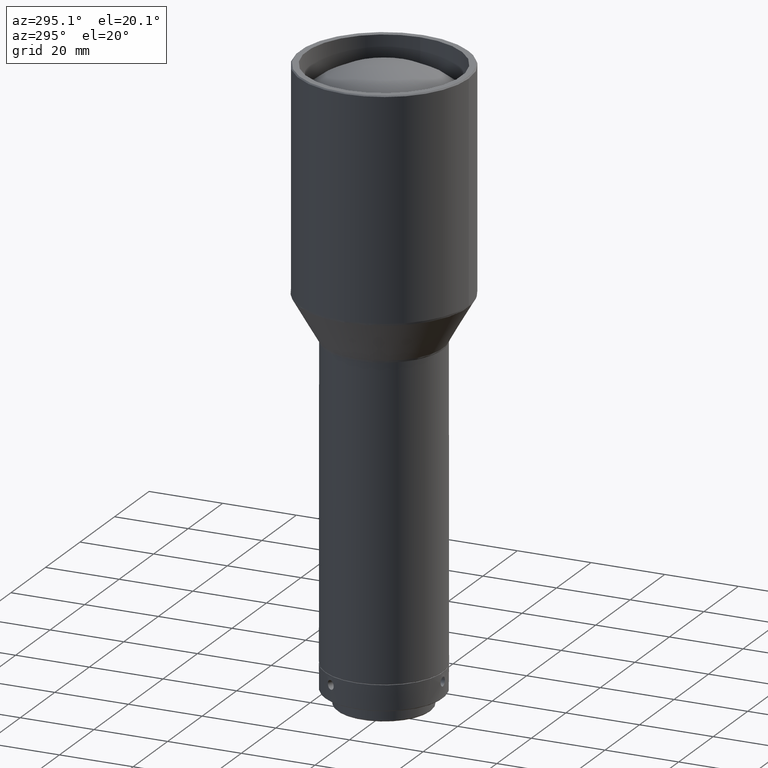
[diagram: clean part render]
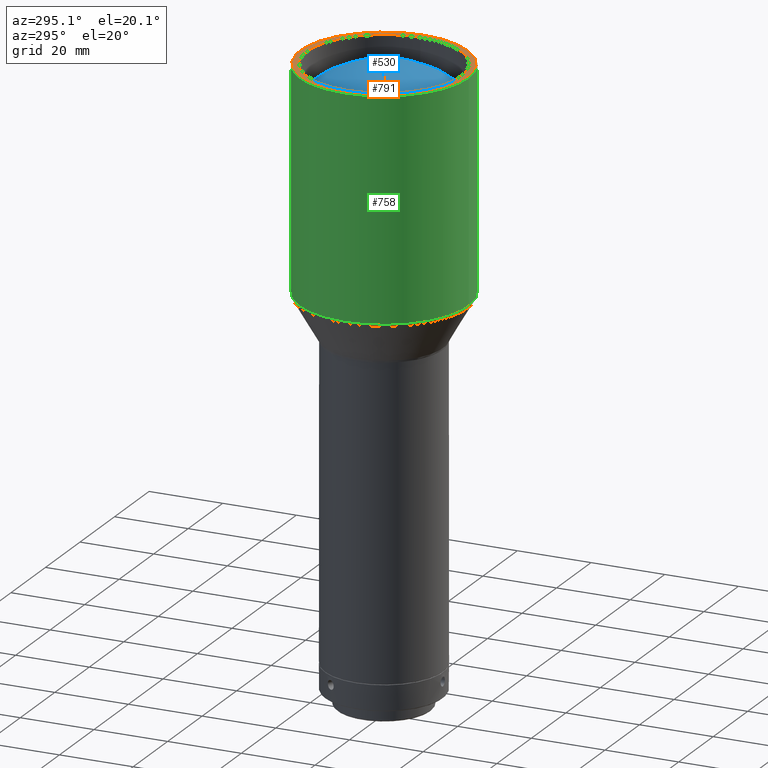
[diagram: same view with three faces highlighted in distinct colors, each labeled with its STEP entity id]
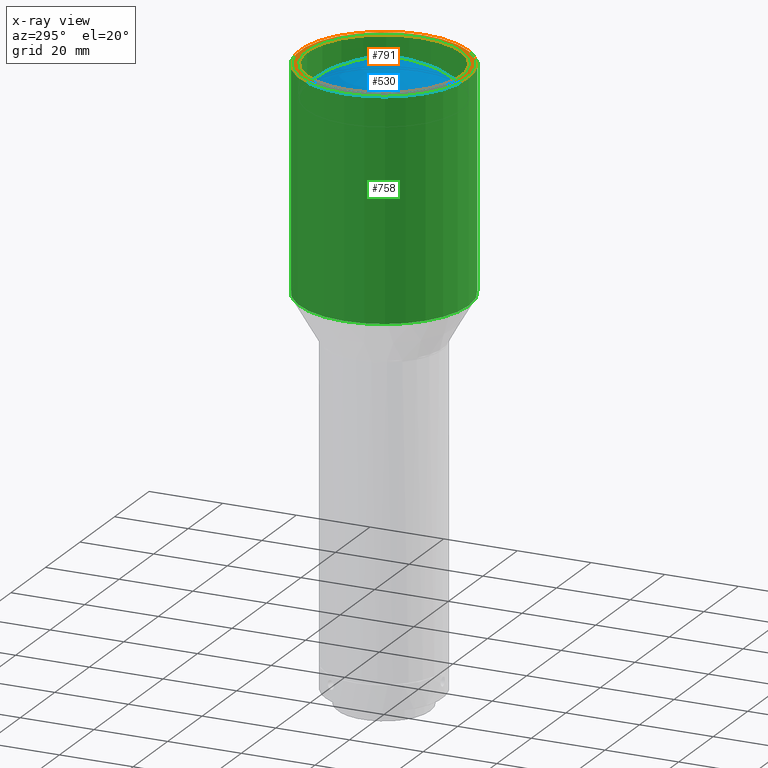
[diagram: x-ray of the same camera — body ghosted, the three highlighted faces saturated]
A machine part, auxiliary view with three faces highlighted in distinct colors.
The next image is the same camera in x-ray (body ghosted, the three faces saturated) — at least one of them is partly hidden behind the body in this view.
Their STEP definitions:

[orange] entity #791 — the highlighted planar face has unit normal (-0, -0, -1).
#7 = CIRCLE ( 'NONE', #616, 21.00000000000000000 ) ;
#30 = EDGE_LOOP ( 'NONE', ( #864 ) ) ;
#54 = DIRECTION ( 'NONE',  ( 0.000000000000000000, 0.000000000000000000, 1.000000000000000000 ) ) ;
#56 = FACE_OUTER_BOUND ( 'NONE', #30, .T. ) ;
#151 = VERTEX_POINT ( 'NONE', #484 ) ;
#191 = DIRECTION ( 'NONE',  ( -1.000000000000000000, 0.000000000000000000, 0.000000000000000000 ) ) ;
#320 = AXIS2_PLACEMENT_3D ( 'NONE', #720, #783, #378 ) ;
#374 = CIRCLE ( 'NONE', #735, 22.69999999999998153 ) ;
#378 = DIRECTION ( 'NONE',  ( 0.000000000000000000, 1.000000000000000000, -1.387225799431352990E-18 ) ) ;
#394 = PLANE ( 'NONE',  #320 ) ;
#444 = CARTESIAN_POINT ( 'NONE',  ( 1.144917494144692682E-13, -1.599226984640118170E-14, -950.0000000000000000 ) ) ;
#471 = DIRECTION ( 'NONE',  ( 1.000000000000000000, 0.000000000000000000, 0.000000000000000000 ) ) ;
#484 = CARTESIAN_POINT ( 'NONE',  ( -22.69999999999986784, -1.599226984640118170E-14, -950.0000000000000000 ) ) ;
#488 = EDGE_CURVE ( 'NONE', #1018, #1018, #7, .T. ) ;
#609 = CARTESIAN_POINT ( 'NONE',  ( 21.00000000000000000, 0.000000000000000000, -950.0000000000000000 ) ) ;
#616 = AXIS2_PLACEMENT_3D ( 'NONE', #983, #54, #471 ) ;
#704 = FACE_BOUND ( 'NONE', #844, .T. ) ;
#720 = CARTESIAN_POINT ( 'NONE',  ( 1.131076532574818235E-13, 21.74999999999997158, -950.0000000000000000 ) ) ;
#735 = AXIS2_PLACEMENT_3D ( 'NONE', #444, #770, #191 ) ;
#770 = DIRECTION ( 'NONE',  ( 0.000000000000000000, 0.000000000000000000, -1.000000000000000000 ) ) ;
#783 = DIRECTION ( 'NONE',  ( -4.930380657631324879E-32, -1.387225799431352990E-18, -1.000000000000000000 ) ) ;
#791 = ADVANCED_FACE ( 'NONE', ( #704, #56 ), #394, .F. ) ;
#844 = EDGE_LOOP ( 'NONE', ( #882 ) ) ;
#864 = ORIENTED_EDGE ( 'NONE', *, *, #905, .F. ) ;
#882 = ORIENTED_EDGE ( 'NONE', *, *, #488, .F. ) ;
#905 = EDGE_CURVE ( 'NONE', #151, #151, #374, .T. ) ;
#983 = CARTESIAN_POINT ( 'NONE',  ( 0.000000000000000000, 0.000000000000000000, -950.0000000000000000 ) ) ;
#1018 = VERTEX_POINT ( 'NONE', #609 ) ;

[blue] entity #530 — the highlighted spherical surface has radius 31.2095 mm.
#31 = VERTEX_POINT ( 'NONE', #1054 ) ;
#154 = CARTESIAN_POINT ( 'NONE',  ( 0.000000000000000000, -4.163336342344337027E-14, -981.5680567275544490 ) ) ;
#176 = DIRECTION ( 'NONE',  ( -1.000000000000000000, 0.000000000000000000, 0.000000000000000000 ) ) ;
#321 = FACE_OUTER_BOUND ( 'NONE', #933, .T. ) ;
#431 = CIRCLE ( 'NONE', #482, 21.00000000000000000 ) ;
#466 = DIRECTION ( 'NONE',  ( -0.3830490080632378835, 0.9237280213470681067, 0.000000000000000000 ) ) ;
#482 = AXIS2_PLACEMENT_3D ( 'NONE', #739, #918, #176 ) ;
#530 = ADVANCED_FACE ( 'NONE', ( #321 ), #895, .T. ) ;
#574 = DIRECTION ( 'NONE',  ( 4.665676044949140993E-17, 1.934749774458438248E-17, 1.000000000000000000 ) ) ;
#599 = EDGE_CURVE ( 'NONE', #31, #31, #431, .T. ) ;
#739 = CARTESIAN_POINT ( 'NONE',  ( 0.000000000000000000, 0.000000000000000000, -958.4805314758424402 ) ) ;
#859 = ORIENTED_EDGE ( 'NONE', *, *, #599, .F. ) ;
#895 = SPHERICAL_SURFACE ( 'NONE', #947, 31.20951493132240273 ) ;
#918 = DIRECTION ( 'NONE',  ( 0.000000000000000000, 0.000000000000000000, -1.000000000000000000 ) ) ;
#933 = EDGE_LOOP ( 'NONE', ( #859 ) ) ;
#947 = AXIS2_PLACEMENT_3D ( 'NONE', #154, #574, #466 ) ;
#1054 = CARTESIAN_POINT ( 'NONE',  ( -21.00000000000000000, 0.000000000000000000, -958.4805314758424402 ) ) ;

[green] entity #758 — the highlighted cylindrical surface (bore or boss wall) has radius 23 mm, axis along (0, 0, 1).
#53 = FACE_OUTER_BOUND ( 'NONE', #223, .T. ) ;
#61 = EDGE_LOOP ( 'NONE', ( #273 ) ) ;
#106 = DIRECTION ( 'NONE',  ( 0.000000000000000000, -1.000000000000000000, 0.000000000000000000 ) ) ;
#177 = CARTESIAN_POINT ( 'NONE',  ( 1.140131789119417168E-13, -1.607471552059455918E-14, -1009.732050807568044 ) ) ;
#193 = ORIENTED_EDGE ( 'NONE', *, *, #204, .T. ) ;
#204 = EDGE_CURVE ( 'NONE', #953, #953, #740, .T. ) ;
#223 = EDGE_LOOP ( 'NONE', ( #193 ) ) ;
#249 = DIRECTION ( 'NONE',  ( 4.930380657631324879E-32, 1.387225799431353182E-18, 1.000000000000000000 ) ) ;
#267 = AXIS2_PLACEMENT_3D ( 'NONE', #696, #475, #1026 ) ;
#273 = ORIENTED_EDGE ( 'NONE', *, *, #917, .T. ) ;
#277 = CARTESIAN_POINT ( 'NONE',  ( 1.140131789119417168E-13, -23.00000000000000000, -1009.732050807568044 ) ) ;
#302 = CYLINDRICAL_SURFACE ( 'NONE', #267, 22.99999999999998224 ) ;
#475 = DIRECTION ( 'NONE',  ( 4.930380657631324879E-32, 1.387225799431353182E-18, 1.000000000000000000 ) ) ;
#549 = AXIS2_PLACEMENT_3D ( 'NONE', #177, #249, #756 ) ;
#565 = CIRCLE ( 'NONE', #978, 22.99999999999998224 ) ;
#644 = CARTESIAN_POINT ( 'NONE',  ( 1.140131789119417168E-13, -23.00000000000000000, -950.2999999999998408 ) ) ;
#696 = CARTESIAN_POINT ( 'NONE',  ( 1.140131789119417168E-13, -1.599185367866135417E-14, -950.0000000000000000 ) ) ;
#726 = VERTEX_POINT ( 'NONE', #644 ) ;
#740 = CIRCLE ( 'NONE', #549, 22.99999999999998224 ) ;
#756 = DIRECTION ( 'NONE',  ( 0.000000000000000000, -1.000000000000000000, 0.000000000000000000 ) ) ;
#758 = ADVANCED_FACE ( 'NONE', ( #796, #53 ), #302, .T. ) ;
#796 = FACE_OUTER_BOUND ( 'NONE', #61, .T. ) ;
#850 = CARTESIAN_POINT ( 'NONE',  ( 1.140131789119417168E-13, -1.599226984640118486E-14, -950.2999999999998408 ) ) ;
#917 = EDGE_CURVE ( 'NONE', #726, #726, #565, .T. ) ;
#953 = VERTEX_POINT ( 'NONE', #277 ) ;
#978 = AXIS2_PLACEMENT_3D ( 'NONE', #850, #1007, #106 ) ;
#1007 = DIRECTION ( 'NONE',  ( -4.930380657631324879E-32, -1.387225799431353182E-18, -1.000000000000000000 ) ) ;
#1026 = DIRECTION ( 'NONE',  ( 0.000000000000000000, -1.000000000000000000, 0.000000000000000000 ) ) ;